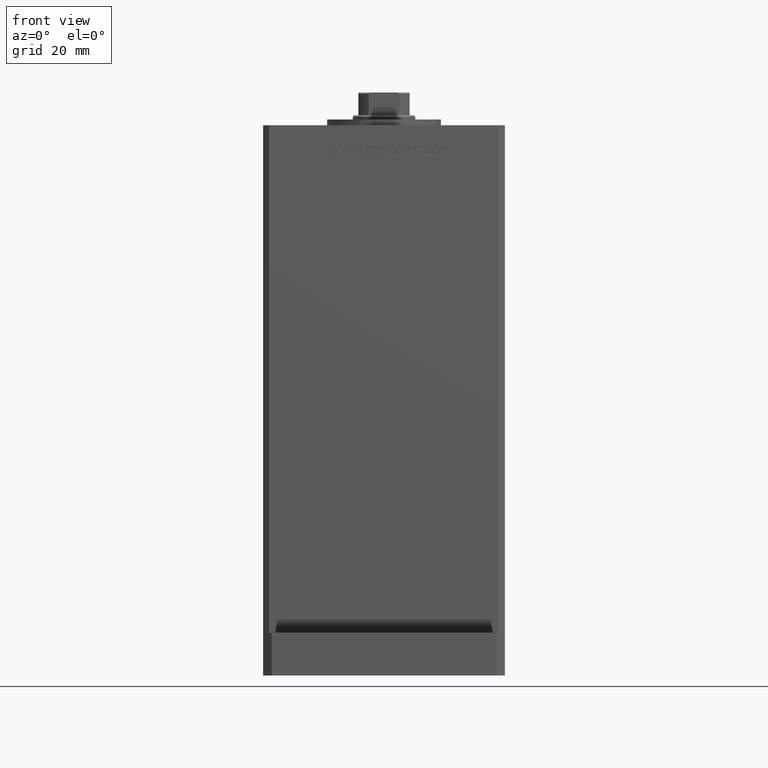
[diagram: clean part render]
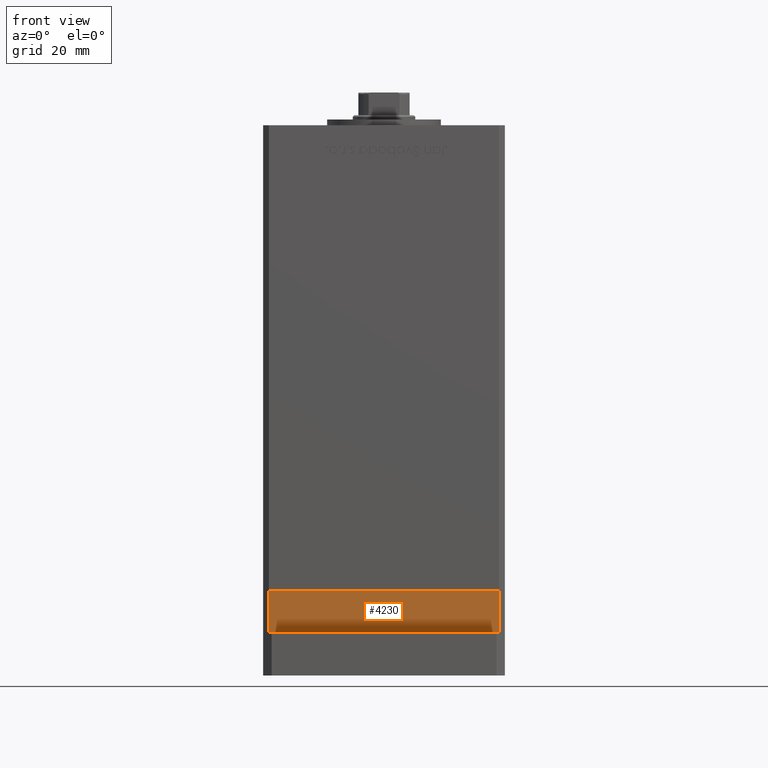
[diagram: same view with one face highlighted and labeled with its STEP entity id]
A machine part, front view. The second image highlights one B-rep face of the part: STEP entity #4230.
In plain terms, the highlighted planar face has unit normal (-0, -1, -0).
Its self-contained STEP definition (entity closure, byte-faithful):
#1923 = EDGE_CURVE ( 'NONE', #41731, #23015, #14326, .T. ) ;
#2293 = ORIENTED_EDGE ( 'NONE', *, *, #13447, .T. ) ;
#3428 = EDGE_LOOP ( 'NONE', ( #13243, #18638, #11454, #2293 ) ) ;
#4230 = ADVANCED_FACE ( 'NONE', ( #40304 ), #14742, .T. ) ;
#6226 = CARTESIAN_POINT ( 'NONE',  ( 40.50000000000000000, -37.50000000000000711, -15.00000000000000000 ) ) ;
#6712 = LINE ( 'NONE', #15372, #12574 ) ;
#8767 = EDGE_CURVE ( 'NONE', #41731, #42664, #11735, .T. ) ;
#9847 = AXIS2_PLACEMENT_3D ( 'NONE', #39501, #27397, #15811 ) ;
#11454 = ORIENTED_EDGE ( 'NONE', *, *, #1923, .T. ) ;
#11477 = CARTESIAN_POINT ( 'NONE',  ( -40.49999999999999289, -37.50000000000002132, -15.00000000000000000 ) ) ;
#11735 = LINE ( 'NONE', #19326, #25382 ) ;
#12574 = VECTOR ( 'NONE', #23446, 1000.000000000000000 ) ;
#12667 = EDGE_CURVE ( 'NONE', #42664, #16885, #6712, .T. ) ;
#13243 = ORIENTED_EDGE ( 'NONE', *, *, #12667, .F. ) ;
#13447 = EDGE_CURVE ( 'NONE', #23015, #16885, #49898, .T. ) ;
#14326 = LINE ( 'NONE', #32251, #30426 ) ;
#14742 = PLANE ( 'NONE',  #9847 ) ;
#15372 = CARTESIAN_POINT ( 'NONE',  ( -40.49999999999999289, -37.50000000000002132, 0.000000000000000000 ) ) ;
#15811 = DIRECTION ( 'NONE',  ( 1.000000000000000000, 1.713307136767217096E-16, 0.000000000000000000 ) ) ;
#16885 = VERTEX_POINT ( 'NONE', #53290 ) ;
#18638 = ORIENTED_EDGE ( 'NONE', *, *, #8767, .F. ) ;
#19326 = CARTESIAN_POINT ( 'NONE',  ( -40.49999999999999289, -37.50000000000002132, -15.00000000000000000 ) ) ;
#23015 = VERTEX_POINT ( 'NONE', #6226 ) ;
#23446 = DIRECTION ( 'NONE',  ( 1.000000000000000000, 1.713307136767217096E-16, 0.000000000000000000 ) ) ;
#25382 = VECTOR ( 'NONE', #35714, 1000.000000000000000 ) ;
#27397 = DIRECTION ( 'NONE',  ( 1.713307136767217096E-16, -1.000000000000000000, 0.000000000000000000 ) ) ;
#30426 = VECTOR ( 'NONE', #30745, 1000.000000000000000 ) ;
#30745 = DIRECTION ( 'NONE',  ( 1.000000000000000000, 1.713307136767217096E-16, 0.000000000000000000 ) ) ;
#32222 = CARTESIAN_POINT ( 'NONE',  ( -40.49999999999999289, -37.50000000000002132, 0.000000000000000000 ) ) ;
#32251 = CARTESIAN_POINT ( 'NONE',  ( -40.49999999999999289, -37.50000000000002132, -15.00000000000000000 ) ) ;
#35714 = DIRECTION ( 'NONE',  ( 0.000000000000000000, 0.000000000000000000, 1.000000000000000000 ) ) ;
#39501 = CARTESIAN_POINT ( 'NONE',  ( -40.49999999999999289, -37.50000000000002132, -15.00000000000000000 ) ) ;
#40304 = FACE_OUTER_BOUND ( 'NONE', #3428, .T. ) ;
#40948 = VECTOR ( 'NONE', #45038, 1000.000000000000000 ) ;
#41731 = VERTEX_POINT ( 'NONE', #11477 ) ;
#42664 = VERTEX_POINT ( 'NONE', #32222 ) ;
#45038 = DIRECTION ( 'NONE',  ( 0.000000000000000000, 0.000000000000000000, 1.000000000000000000 ) ) ;
#45841 = CARTESIAN_POINT ( 'NONE',  ( 40.50000000000000000, -37.50000000000000711, -15.00000000000000000 ) ) ;
#49898 = LINE ( 'NONE', #45841, #40948 ) ;
#53290 = CARTESIAN_POINT ( 'NONE',  ( 40.50000000000000000, -37.50000000000000711, 0.000000000000000000 ) ) ;